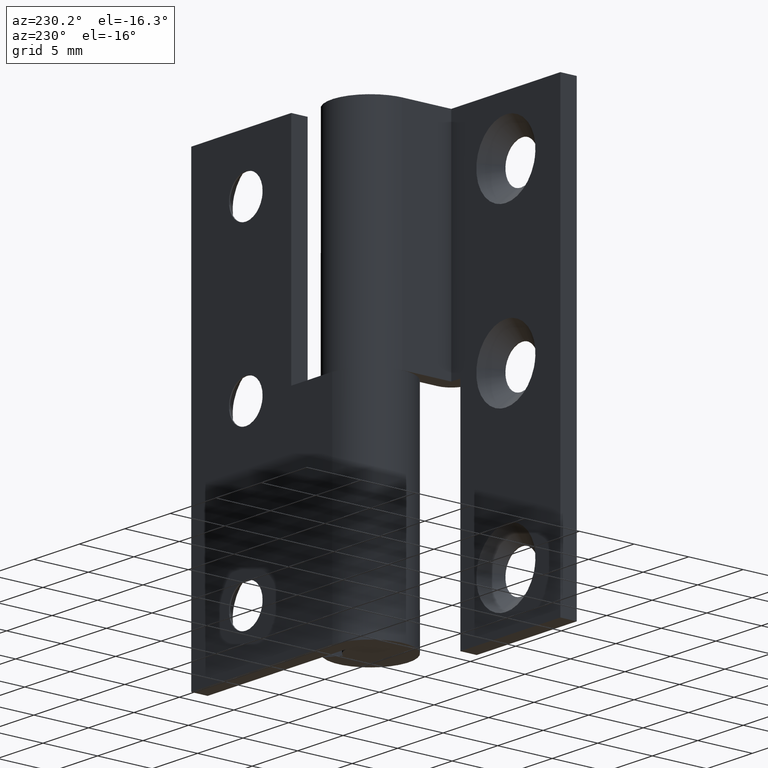
[diagram: clean part render]
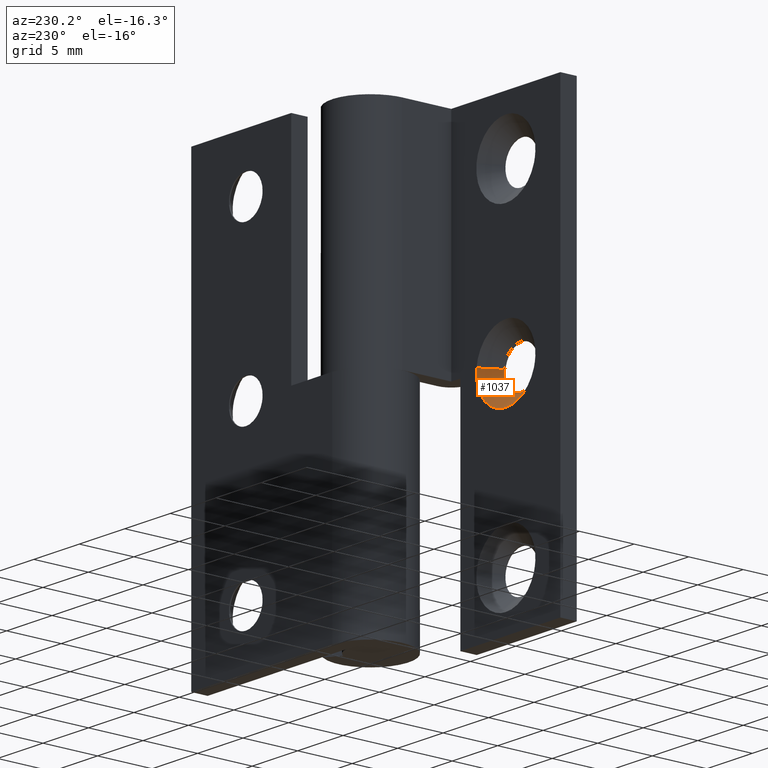
[diagram: same view with one face highlighted and labeled with its STEP entity id]
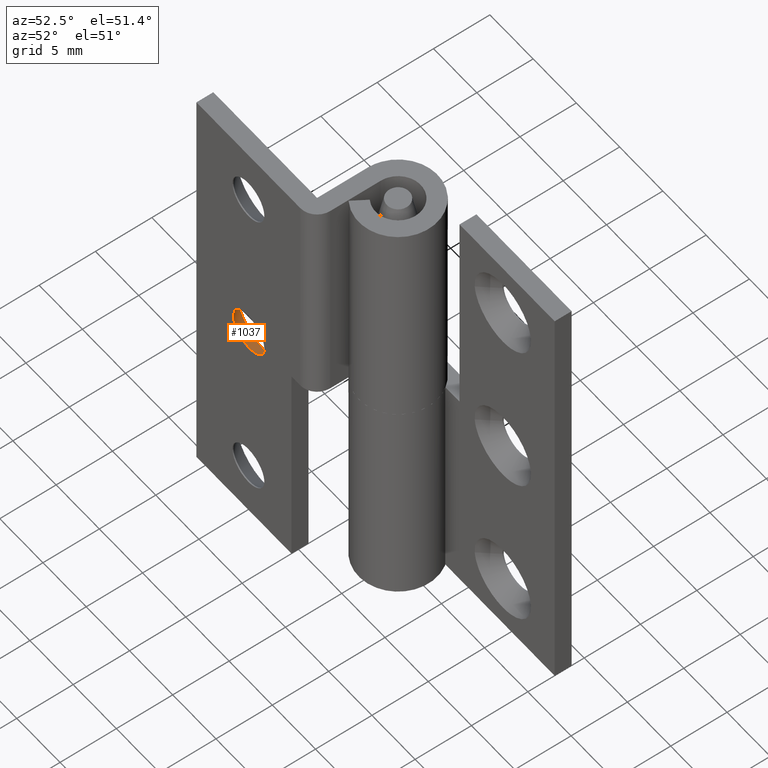
[diagram: same view with one face highlighted and labeled with its STEP entity id]
A machine part, auxiliary view. The second image highlights one B-rep face of the part: STEP entity #1037.
A second angle (auxiliary view) of the same face is appended — the face is thin or edge-on in the first view.
In plain terms, the highlighted face is a freeform B-spline surface patch.
Its self-contained STEP definition (entity closure, byte-faithful):
#783=CARTESIAN_POINT('',(-8.849508438021454,-5.900000000000025,18.268133744254069));
#784=VERTEX_POINT('',#783);
#785=CARTESIAN_POINT('',(-9.500000000000000,-5.900000000000000,18.149999999999999));
#786=VERTEX_POINT('',#785);
#787=CARTESIAN_POINT('',(-8.849508438021454,-5.900000000000025,18.268133744254069));
#788=CARTESIAN_POINT('',(-9.164027268541886,-5.900000000000000,18.149999999999999));
#789=CARTESIAN_POINT('',(-9.500000000000000,-5.900000000000000,18.149999999999999));
#797=(BOUNDED_CURVE()B_SPLINE_CURVE(2,(#787,#788,#789),.UNSPECIFIED.,.F.,.U.)B_SPLINE_CURVE_WITH_KNOTS((3,3),(0.440284325089436,0.500000000000000),.UNSPECIFIED.)CURVE()GEOMETRIC_REPRESENTATION_ITEM()RATIONAL_B_SPLINE_CURVE((0.893499743328592,0.930038735047309,1.0))REPRESENTATION_ITEM(''));
#798=EDGE_CURVE('',#784,#786,#797,.T.);
#800=CARTESIAN_POINT('',(-11.346549377094250,-5.899999999948509,19.887060201664390));
#801=VERTEX_POINT('',#800);
#802=CARTESIAN_POINT('',(-9.500000000000000,-5.900000000000000,18.149999999999999));
#803=CARTESIAN_POINT('',(-11.240306223040747,-5.900000000000001,18.149999999999999));
#804=CARTESIAN_POINT('',(-11.346549377094254,-5.899999999948509,19.887060201664394));
#812=(BOUNDED_CURVE()B_SPLINE_CURVE(2,(#802,#803,#804),.UNSPECIFIED.,.F.,.U.)B_SPLINE_CURVE_WITH_KNOTS((3,3),(0.500000000000000,0.739332962169252),.UNSPECIFIED.)CURVE()GEOMETRIC_REPRESENTATION_ITEM()RATIONAL_B_SPLINE_CURVE((1.0,0.719603993368358,0.976072041517357))REPRESENTATION_ITEM(''));
#813=EDGE_CURVE('',#786,#801,#812,.T.);
#882=CARTESIAN_POINT('',(-7.662932376223764,-5.899999999947706,20.218363334528998));
#883=VERTEX_POINT('',#882);
#884=CARTESIAN_POINT('',(-7.662932376223764,-5.899999999947706,20.218363334528998));
#885=CARTESIAN_POINT('',(-7.649999999999999,-5.900000000000000,20.109564621768161));
#886=CARTESIAN_POINT('',(-7.650000000000000,-5.900000000000000,20.0));
#887=CARTESIAN_POINT('',(-7.649999999999999,-5.900000000000000,18.718670911812261));
#888=CARTESIAN_POINT('',(-8.849508438021454,-5.900000000000025,18.268133744254069));
#896=(BOUNDED_CURVE()B_SPLINE_CURVE(2,(#884,#885,#886,#887,#888),.UNSPECIFIED.,.F.,.U.)B_SPLINE_CURVE_WITH_KNOTS((3,2,3),(0.229562473440609,0.250000000000000,0.440284325089436),.UNSPECIFIED.)CURVE()GEOMETRIC_REPRESENTATION_ITEM()RATIONAL_B_SPLINE_CURVE((0.956026754040813,0.976055948245738,1.0,0.777068046139238,0.893499743328592))REPRESENTATION_ITEM(''));
#897=EDGE_CURVE('',#883,#784,#896,.T.);
#966=CARTESIAN_POINT('',(-7.697687709649947,-5.935000000000001,20.214232135902023));
#967=CARTESIAN_POINT('',(-7.691556477960781,-5.935000000000001,20.162650732477935));
#968=CARTESIAN_POINT('',(-7.688385340864312,-5.935000000000001,20.110803099255769));
#969=CARTESIAN_POINT('',(-7.577582241608548,-5.935000000000001,18.299188440120080));
#970=CARTESIAN_POINT('',(-9.389196900744235,-5.935000000000001,18.188385340864311));
#971=CARTESIAN_POINT('',(-11.200811559879924,-5.935000000000001,18.077582241608543));
#972=CARTESIAN_POINT('',(-11.311614659135691,-5.935000000000001,19.889196900744238));
#973=CARTESIAN_POINT('',(-6.237094822559788,-4.464125000000000,20.387845740802774));
#974=CARTESIAN_POINT('',(-6.225994844087813,-4.464125000000000,20.294462796463311));
#975=CARTESIAN_POINT('',(-6.220253819235548,-4.464124999999999,20.200597869844099));
#976=CARTESIAN_POINT('',(-6.019655949391452,-4.464124999999999,16.920851689079651));
#977=CARTESIAN_POINT('',(-9.299402130155903,-4.464124999999999,16.720253819235548));
#978=CARTESIAN_POINT('',(-12.579148310920354,-4.464124999999999,16.519655949391453));
#979=CARTESIAN_POINT('',(-12.779746180764450,-4.464124999999999,19.799402130155901));
#987=(BOUNDED_SURFACE()B_SPLINE_SURFACE(2,1,((#966,#973),(#967,#974),(#968,#975),(#969,#976),(#970,#977),(#971,#978),(#972,#979)),.UNSPECIFIED.,.F.,.F.,.U.)B_SPLINE_SURFACE_WITH_KNOTS((3,2,2,3),(2,2),(0.0,0.217768638282031,5.661984595332806,11.106200552383580),(0.0,2.080131373555528),.UNSPECIFIED.)GEOMETRIC_REPRESENTATION_ITEM()RATIONAL_B_SPLINE_SURFACE(((0.977505800795127,0.977505800795127),(0.988284271247462,0.988284271247462),(1.0,1.0),(0.707106781186548,0.707106781186548),(1.0,1.0),(0.707106781186548,0.707106781186548),(1.0,1.0)))REPRESENTATION_ITEM('')SURFACE());
#988=ORIENTED_EDGE('',*,*,#897,.F.);
#989=CARTESIAN_POINT('',(-6.272719039316657,-4.499999999979498,20.383611262796151));
#990=VERTEX_POINT('',#989);
#991=CARTESIAN_POINT('',(-7.662932376223764,-5.899999999947706,20.218363334528998));
#992=CARTESIAN_POINT('',(-6.272719039316657,-4.499999999979498,20.383611262796151));
#993=QUASI_UNIFORM_CURVE('',1,(#991,#992),.UNSPECIFIED.,.F.,.U.);
#994=EDGE_CURVE('',#883,#990,#993,.T.);
#995=ORIENTED_EDGE('',*,*,#994,.T.);
#996=CARTESIAN_POINT('',(-9.500000000000000,-4.500000000000000,16.750000000000000));
#997=VERTEX_POINT('',#996);
#998=CARTESIAN_POINT('',(-6.272719039316657,-4.499999999979498,20.383611262796148));
#999=CARTESIAN_POINT('',(-6.250000000000000,-4.500000000000000,20.192478389029656));
#1000=CARTESIAN_POINT('',(-6.250000000000000,-4.500000000000000,20.0));
#1001=CARTESIAN_POINT('',(-6.249999999999999,-4.500000000000000,16.750000000000000));
#1002=CARTESIAN_POINT('',(-9.500000000000000,-4.500000000000000,16.750000000000000));
#1010=(BOUNDED_CURVE()B_SPLINE_CURVE(2,(#998,#999,#1000,#1001,#1002),.UNSPECIFIED.,.F.,.U.)B_SPLINE_CURVE_WITH_KNOTS((3,2,3),(0.229562473498964,0.250000000000000,0.500000000000000),.UNSPECIFIED.)CURVE()GEOMETRIC_REPRESENTATION_ITEM()RATIONAL_B_SPLINE_CURVE((0.956026754155192,0.976055948314105,1.0,0.707106781186547,1.0))REPRESENTATION_ITEM(''));
#1011=EDGE_CURVE('',#990,#997,#1010,.T.);
#1012=ORIENTED_EDGE('',*,*,#1011,.T.);
#1013=CARTESIAN_POINT('',(-12.743938094887730,-4.499999999968991,19.801592246276229));
#1014=VERTEX_POINT('',#1013);
#1015=CARTESIAN_POINT('',(-9.500000000000000,-4.500000000000000,16.750000000000000));
#1016=CARTESIAN_POINT('',(-12.557294717002375,-4.500000000000001,16.750000000000000));
#1017=CARTESIAN_POINT('',(-12.743938094887735,-4.499999999968991,19.801592246276225));
#1025=(BOUNDED_CURVE()B_SPLINE_CURVE(2,(#1015,#1016,#1017),.UNSPECIFIED.,.F.,.U.)B_SPLINE_CURVE_WITH_KNOTS((3,3),(0.500000000000000,0.739332962217118),.UNSPECIFIED.)CURVE()GEOMETRIC_REPRESENTATION_ITEM()RATIONAL_B_SPLINE_CURVE((1.0,0.719603993312279,0.976072041619943))REPRESENTATION_ITEM(''));
#1026=EDGE_CURVE('',#997,#1014,#1025,.T.);
#1027=ORIENTED_EDGE('',*,*,#1026,.T.);
#1028=CARTESIAN_POINT('',(-11.346549377094250,-5.899999999948509,19.887060201664390));
#1029=CARTESIAN_POINT('',(-12.743938094887730,-4.499999999968991,19.801592246276229));
#1030=QUASI_UNIFORM_CURVE('',1,(#1028,#1029),.UNSPECIFIED.,.F.,.U.);
#1031=EDGE_CURVE('',#801,#1014,#1030,.T.);
#1032=ORIENTED_EDGE('',*,*,#1031,.F.);
#1033=ORIENTED_EDGE('',*,*,#813,.F.);
#1034=ORIENTED_EDGE('',*,*,#798,.F.);
#1035=EDGE_LOOP('',(#988,#995,#1012,#1027,#1032,#1033,#1034));
#1036=FACE_OUTER_BOUND('',#1035,.T.);
#1037=ADVANCED_FACE('',(#1036),#987,.F.);